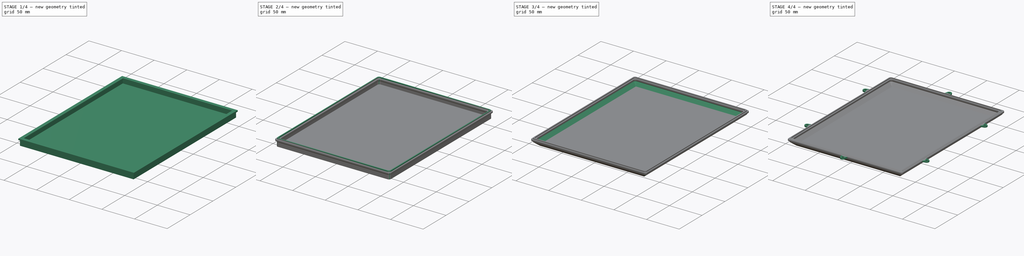
[diagram: build sequence overview — one tinted view per stage of 4, left to right]
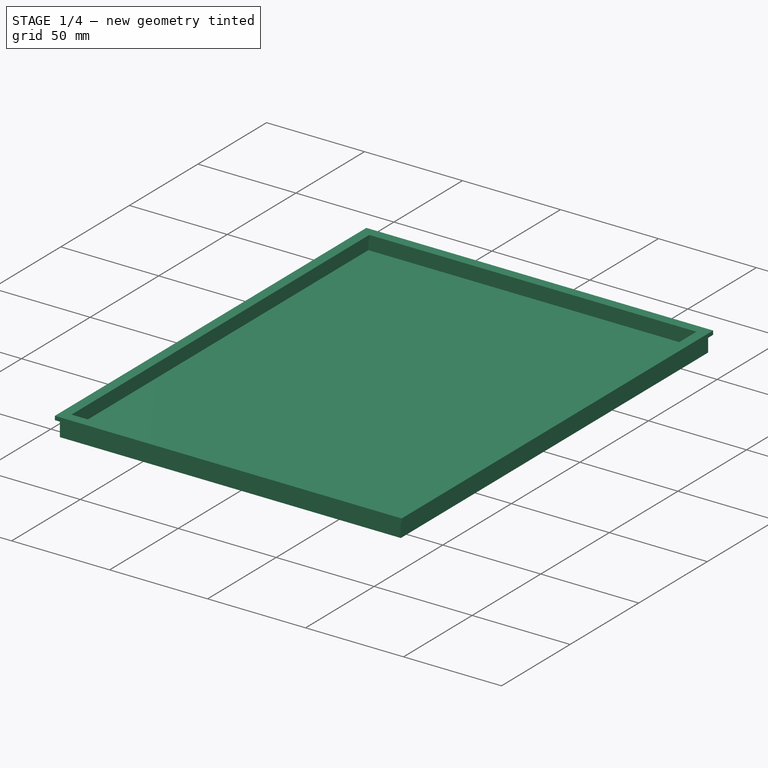
[diagram: stage 1 of 4 — iso view after this stage's code; geometry added in this stage tinted green]
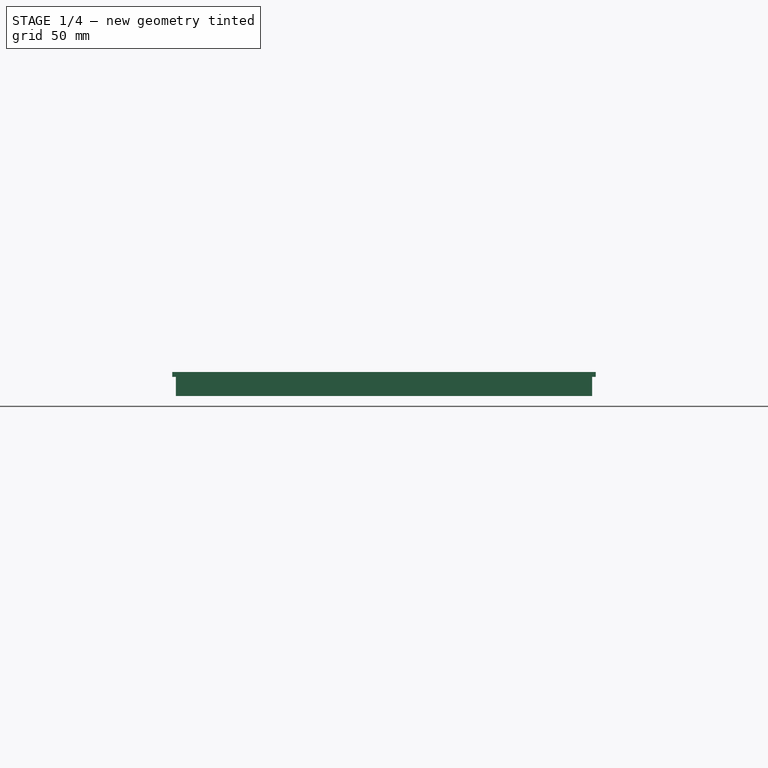
[diagram: stage 1 of 4 — front view after this stage's code; geometry added in this stage tinted green]
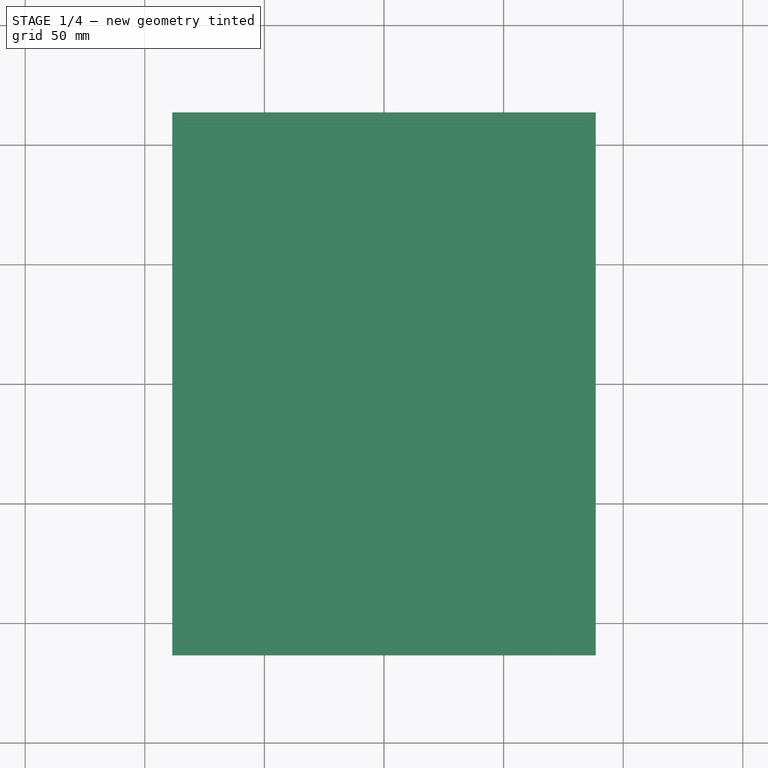
[diagram: stage 1 of 4 — top view after this stage's code; geometry added in this stage tinted green]
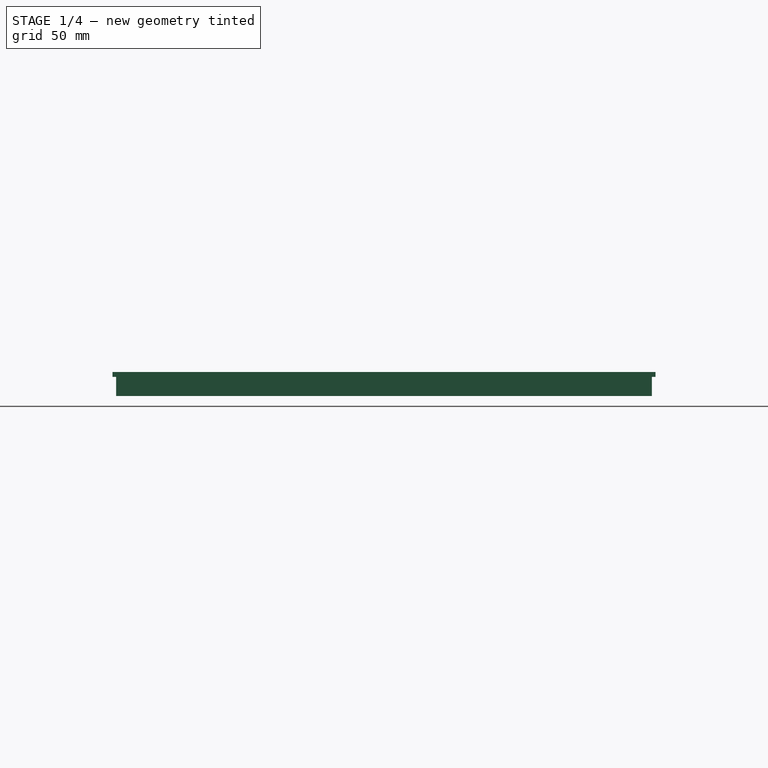
[diagram: stage 1 of 4 — right view after this stage's code; geometry added in this stage tinted green]
FCSTD DOCUMENT  (FreeCAD 0.20R29603 (Git))
Label: Tampa
License: All rights reserved
LicenseURL: http://en.wikipedia.org/wiki/All_rights_reserved
objects: Sketcher::SketchObject×5, PartDesign::Pad×5, PartDesign::Chamfer×5, PartDesign::Fillet×1, PartDesign::Body×1
note: 28 computed .brp shape members not serialized (recipe doc carries the construction recipe); baked Part::Feature solids carry a one-line shape summary decoded from their .brp

FEATURE [Sketcher::SketchObject] Sketch
  FullyConstrained = true
  MapMode = 5
  Support = -> [XY_Plane]
  sketch-geometry (5):
    g0: LineSegment StartX=87 StartY=-112 StartZ=0 EndX=87 EndY=112 EndZ=0
    g1: LineSegment StartX=87 StartY=112 StartZ=0 EndX=-87 EndY=112 EndZ=0
    g2: LineSegment StartX=-87 StartY=112 StartZ=0 EndX=-87 EndY=-112 EndZ=0
    g3: LineSegment StartX=-87 StartY=-112 StartZ=0 EndX=87 EndY=-112 EndZ=0
    g4: GeomPoint X=0 Y=0 Z=0
  constraints (12):
    c: Coincident(g0,g1)
    c: Coincident(g1,g2)
    c: Coincident(g2,g3)
    c: Coincident(g3,g0)
    c: Horizontal(g1)
    c: Horizontal(g3)
    c: Vertical(g0)
    c: Vertical(g2)
    c: Symmetric(g1,g0,g4)
    c: Coincident(g4,g-1)
    c: DistanceX(g1,g1) = 174
    c: DistanceY(g2,g2) = 224
FEATURE [PartDesign::Pad] Pad
  Direction = (0,0,1)
  Length = 2
  Length2 = 10
  Profile = -> Sketch
  ReferenceAxis = -> Sketch [N_Axis]
  Type = 0
FEATURE [Sketcher::SketchObject] Sketch001
  ExternalGeometry = -> [Pad]
  FullyConstrained = true
  MapMode = 5
  Placement = pos=(0,0,2) rot=(0,0,1;0rad)
  Support = -> [Pad]
  sketch-geometry (9):
    g0: LineSegment StartX=-87 StartY=-112 StartZ=0 EndX=87 EndY=-112 EndZ=0
    g1: LineSegment StartX=87 StartY=-112 StartZ=0 EndX=87 EndY=112 EndZ=0
    g2: LineSegment StartX=87 StartY=112 StartZ=0 EndX=-87 EndY=112 EndZ=0
    g3: LineSegment StartX=-87 StartY=112 StartZ=0 EndX=-87 EndY=-112 EndZ=0
    g4: LineSegment StartX=85 StartY=-110 StartZ=0 EndX=85 EndY=110 EndZ=0
    g5: LineSegment StartX=85 StartY=110 StartZ=0 EndX=-85 EndY=110 EndZ=0
    g6: LineSegment StartX=-85 StartY=110 StartZ=0 EndX=-85 EndY=-110 EndZ=0
    g7: LineSegment StartX=-85 StartY=-110 StartZ=0 EndX=85 EndY=-110 EndZ=0
    g8: GeomPoint X=0 Y=0 Z=0
  constraints (22):
    c: Coincident(g0,g1)
    c: Coincident(g1,g2)
    c: Coincident(g2,g3)
    c: Coincident(g3,g0)
    c: Horizontal(g0)
    c: Horizontal(g2)
    c: Vertical(g1)
    c: Vertical(g3)
    c: Coincident(g0,g-4)
    c: Coincident(g1,g-3)
    c: Coincident(g4,g5)
    c: Coincident(g5,g6)
    c: Coincident(g6,g7)
    c: Coincident(g7,g4)
    c: Horizontal(g5)
    c: Horizontal(g7)
    c: Vertical(g4)
    c: Vertical(g6)
    c: Symmetric(g5,g4,g8)
    c: Coincident(g8,g-1)
    c: DistanceX(g2,g5) = 2
    c: DistanceY(g5,g2) = 2
FEATURE [PartDesign::Pad] Pad001
  BaseFeature = -> Pad
  Direction = (0,0,1)
  Length = 8
  Length2 = 10
  Profile = -> Sketch001
  ReferenceAxis = -> Sketch001 [N_Axis]
  Type = 0
FEATURE [Sketcher::SketchObject] Sketch002
  ExternalGeometry = -> [Pad001]
  FullyConstrained = true
  MapMode = 5
  Placement = pos=(0,0,10) rot=(0,0,1;0rad)
  Support = -> [Pad001]
  sketch-geometry (16):
    g0: LineSegment StartX=-85 StartY=-110 StartZ=0 EndX=85 EndY=-110 EndZ=0
    g1: LineSegment StartX=85 StartY=-110 StartZ=0 EndX=85 EndY=110 EndZ=0
    g2: LineSegment StartX=85 StartY=110 StartZ=0 EndX=-85 EndY=110 EndZ=0
    g3: LineSegment StartX=-85 StartY=110 StartZ=0 EndX=-85 EndY=-110 EndZ=0
    g4: LineSegment StartX=87 StartY=112 StartZ=0 EndX=-87 EndY=112 EndZ=0
    g5: LineSegment StartX=-87 StartY=112 StartZ=0 EndX=-87 EndY=-112 EndZ=0
    g6: LineSegment StartX=-87 StartY=-112 StartZ=0 EndX=87 EndY=-112 EndZ=0
    g7: LineSegment StartX=87 StartY=-112 StartZ=0 EndX=87 EndY=112 EndZ=0
    g8: LineSegment StartX=-88.5 StartY=-113.5 StartZ=0 EndX=88.5 EndY=-113.5 EndZ=0
    g9: LineSegment StartX=88.5 StartY=-113.5 StartZ=0 EndX=88.5 EndY=113.5 EndZ=0
    g10: LineSegment StartX=88.5 StartY=113.5 StartZ=0 EndX=-88.5 EndY=113.5 EndZ=0
    g11: LineSegment StartX=-88.5 StartY=113.5 StartZ=0 EndX=-88.5 EndY=-113.5 EndZ=0
    g12: LineSegment StartX=83.5 StartY=108.5 StartZ=0 EndX=-83.5 EndY=108.5 EndZ=0
    g13: LineSegment StartX=-83.5 StartY=108.5 StartZ=0 EndX=-83.5 EndY=-108.5 EndZ=0
    g14: LineSegment StartX=-83.5 StartY=-108.5 StartZ=0 EndX=83.5 EndY=-108.5 EndZ=0
    g15: LineSegment StartX=83.5 StartY=-108.5 StartZ=0 EndX=83.5 EndY=108.5 EndZ=0
  constraints (44):
    c: Coincident(g0,g1)
    c: Coincident(g1,g2)
    c: Coincident(g2,g3)
    c: Coincident(g3,g0)
    c: Horizontal(g0)
    c: Horizontal(g2)
    c: Vertical(g1)
    c: Vertical(g3)
    c: Coincident(g0,g-9)
    c: Coincident(g1,g-8)
    c: Coincident(g4,g5)
    c: Coincident(g5,g6)
    c: Coincident(g6,g7)
    c: Coincident(g7,g4)
    c: Horizontal(g4)
    c: Horizontal(g6)
    c: Vertical(g5)
    c: Vertical(g7)
    c: Coincident(g4,g-7)
    c: Coincident(g5,g-10)
    c: Coincident(g8,g9)
    c: Coincident(g9,g10)
    c: Coincident(g10,g11)
    c: Coincident(g11,g8)
    c: Horizontal(g8)
    c: Horizontal(g10)
    c: Vertical(g9)
    c: Vertical(g11)
    c: Coincident(g12,g13)
    c: Coincident(g13,g14)
    c: Coincident(g14,g15)
    c: Coincident(g15,g12)
    c: Horizontal(g12)
    c: Horizontal(g14)
    c: Vertical(g13)
    c: Vertical(g15)
    c: DistanceX(g8,g5) = 1.5
    c: DistanceY(g8,g5) = 1.5
    c: DistanceX(g0,g13) = 1.5
    c: DistanceY(g0,g13) = 1.5
    c: DistanceX(g12,g1) = 1.5
    c: DistanceY(g12,g1) = 1.5
    c: DistanceX(g4,g9) = 1.5
    c: DistanceY(g4,g9) = 1.5
FEATURE [PartDesign::Pad] Pad002
  BaseFeature = -> Pad001
  Direction = (0,0,1)
  Length = 2
  Length2 = 2
  Profile = -> Sketch002
  ReferenceAxis = -> Sketch002 [N_Axis]
  Refine = true
  Reversed = true
  Type = 0
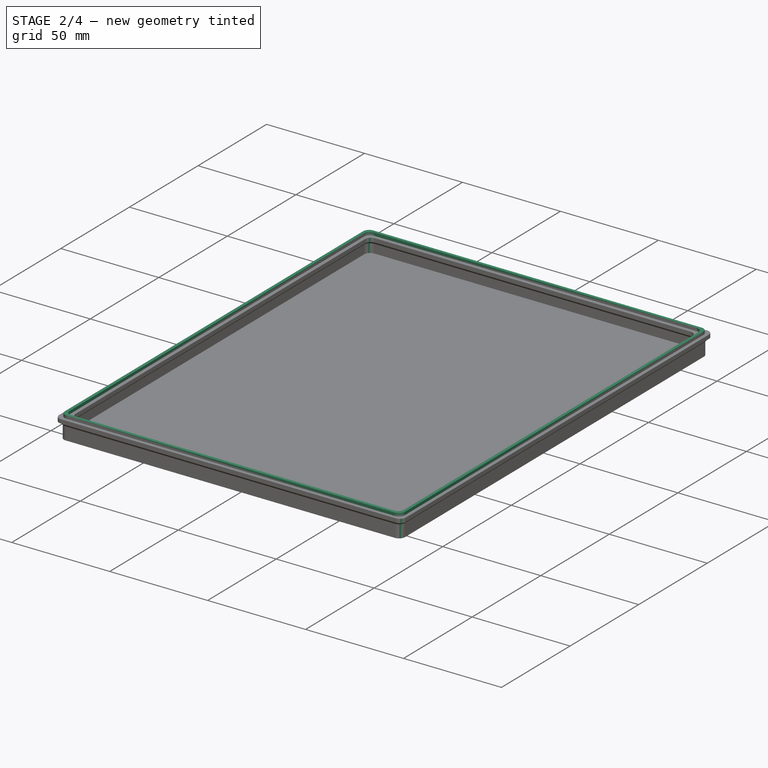
[diagram: stage 2 of 4 — iso view after this stage's code; geometry added in this stage tinted green]
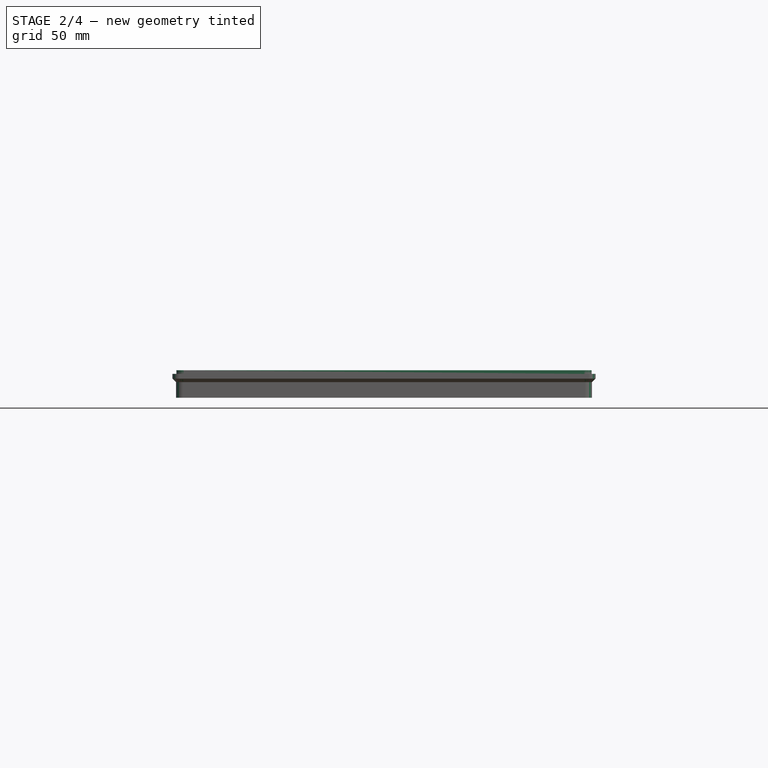
[diagram: stage 2 of 4 — front view after this stage's code; geometry added in this stage tinted green]
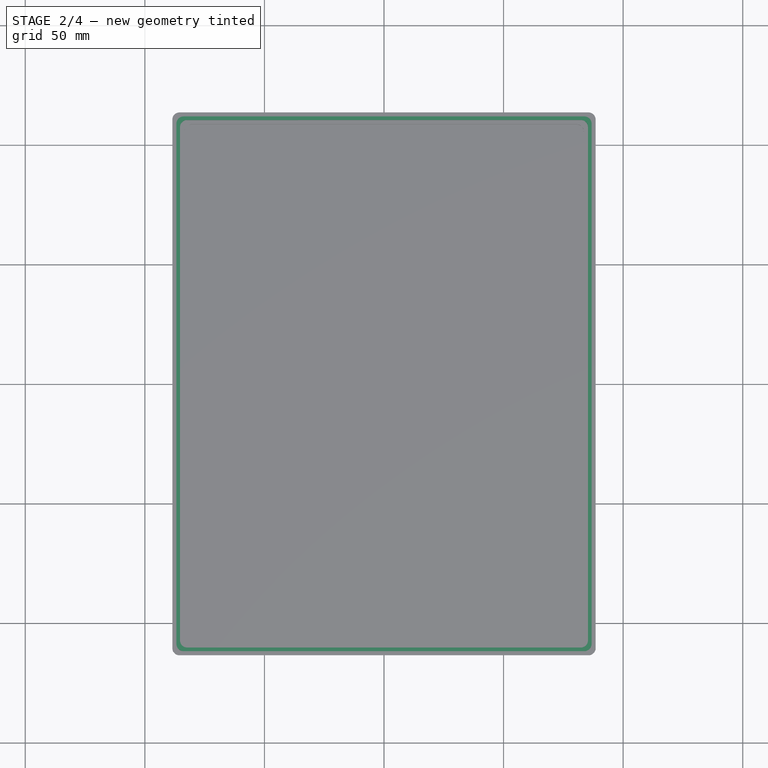
[diagram: stage 2 of 4 — top view after this stage's code; geometry added in this stage tinted green]
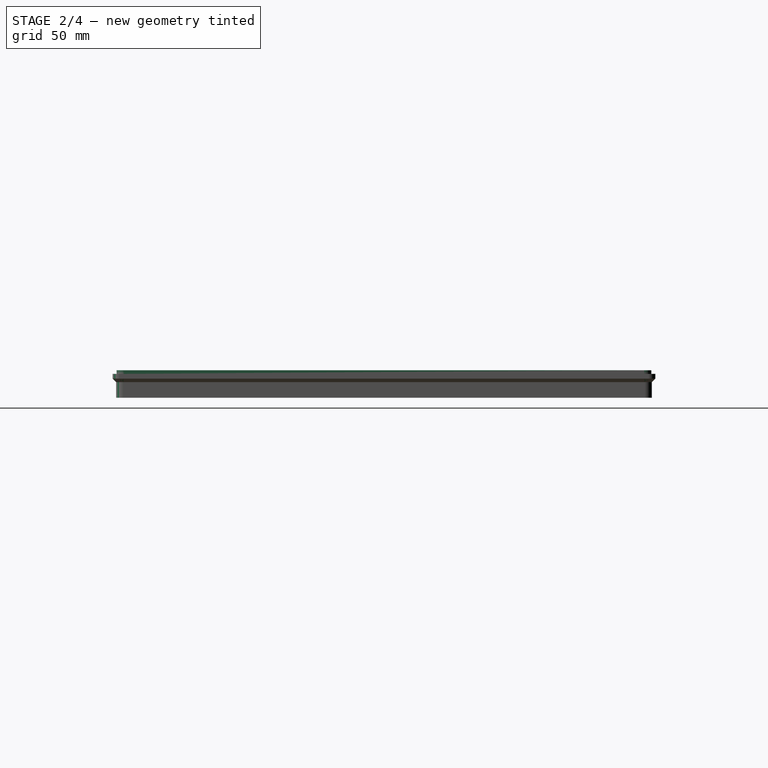
[diagram: stage 2 of 4 — right view after this stage's code; geometry added in this stage tinted green]
FEATURE [Sketcher::SketchObject] Sketch003
  ExternalGeometry = -> [Pad002]
  FullyConstrained = true
  MapMode = 5
  Placement = pos=(0,0,10) rot=(0,0,1;0rad)
  Support = -> [Pad002]
  sketch-geometry (10):
    g0: LineSegment StartX=86.8 StartY=-111.8 StartZ=0 EndX=86.8 EndY=111.8 EndZ=0
    g1: LineSegment StartX=86.8 StartY=111.8 StartZ=0 EndX=-86.8 EndY=111.8 EndZ=0
    g2: LineSegment StartX=-86.8 StartY=111.8 StartZ=0 EndX=-86.8 EndY=-111.8 EndZ=0
    g3: LineSegment StartX=-86.8 StartY=-111.8 StartZ=0 EndX=86.8 EndY=-111.8 EndZ=0
    g4: GeomPoint X=0 Y=0 Z=0
    g5: LineSegment StartX=85.3 StartY=-110.3 StartZ=0 EndX=85.3 EndY=110.3 EndZ=0
    g6: LineSegment StartX=85.3 StartY=110.3 StartZ=0 EndX=-85.3 EndY=110.3 EndZ=0
    g7: LineSegment StartX=-85.3 StartY=110.3 StartZ=0 EndX=-85.3 EndY=-110.3 EndZ=0
    g8: LineSegment StartX=-85.3 StartY=-110.3 StartZ=0 EndX=85.3 EndY=-110.3 EndZ=0
    g9: GeomPoint X=0 Y=0 Z=0
  constraints (24):
    c: Coincident(g0,g1)
    c: Coincident(g1,g2)
    c: Coincident(g2,g3)
    c: Coincident(g3,g0)
    c: Horizontal(g1)
    c: Horizontal(g3)
    c: Vertical(g0)
    c: Vertical(g2)
    c: Symmetric(g1,g0,g4)
    c: Coincident(g4,g-1)
    c: Coincident(g5,g6)
    c: Coincident(g6,g7)
    c: Coincident(g7,g8)
    c: Coincident(g8,g5)
    c: Horizontal(g6)
    c: Horizontal(g8)
    c: Vertical(g5)
    c: Vertical(g7)
    c: Symmetric(g6,g5,g9)
    c: Coincident(g9,g4)
    c: DistanceX(g-3,g1) = 1.7
    c: DistanceY(g1,g-3) = 1.7
    c: DistanceX(g1,g6) = 1.5
    c: DistanceY(g6,g1) = 1.5
FEATURE [PartDesign::Pad] Pad003
  BaseFeature = -> Pad002
  Direction = (0,0,1)
  Length = 1.5
  Length2 = 10
  Profile = -> Sketch003
  ReferenceAxis = -> Sketch003 [N_Axis]
  Type = 0
FEATURE [PartDesign::Fillet] Fillet
  Base = -> Pad003 [Edge54,Edge44,Edge71,Edge32,Edge22,Edge8,Edge53,Edge69,Edge5,Edge42,Edge30,Edge20,Edge56,Edge41,Edge29,Edge18,Edge7,Edge66,Edge17,Edge10,Edge67,Edge34,Edge46,Edge58]
  BaseFeature = -> Pad003
  Radius = 3
  SupportTransform = false
  UseAllEdges = false
FEATURE [PartDesign::Chamfer] Chamfer
  Angle = 45
  Base = -> Fillet [Edge21,Edge122]
  BaseFeature = -> Fillet
  ChamferType = 0
  FlipDirection = false
  Size = 1.49
  Size2 = 1
  SupportTransform = false
  UseAllEdges = false
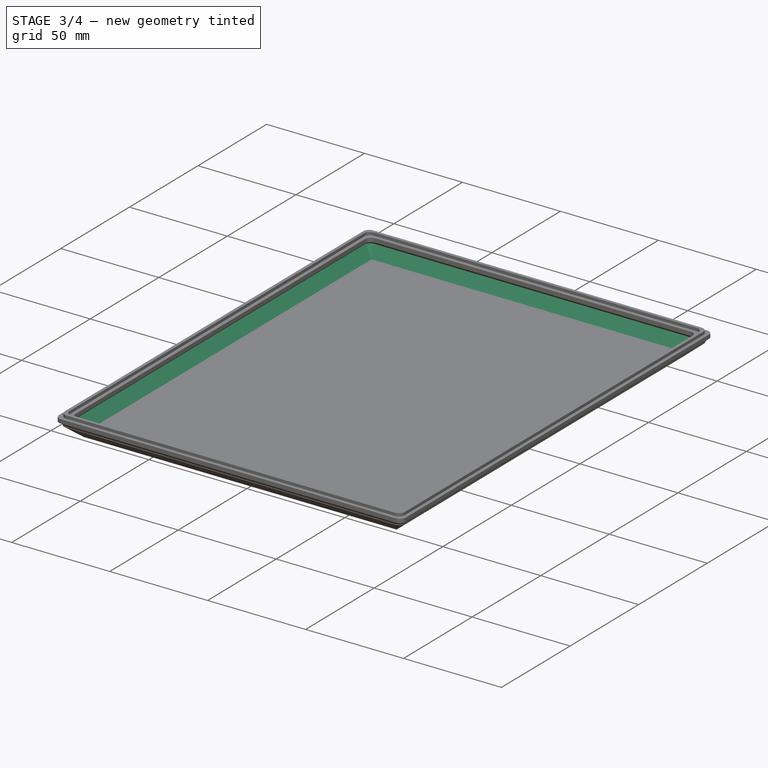
[diagram: stage 3 of 4 — iso view after this stage's code; geometry added in this stage tinted green]
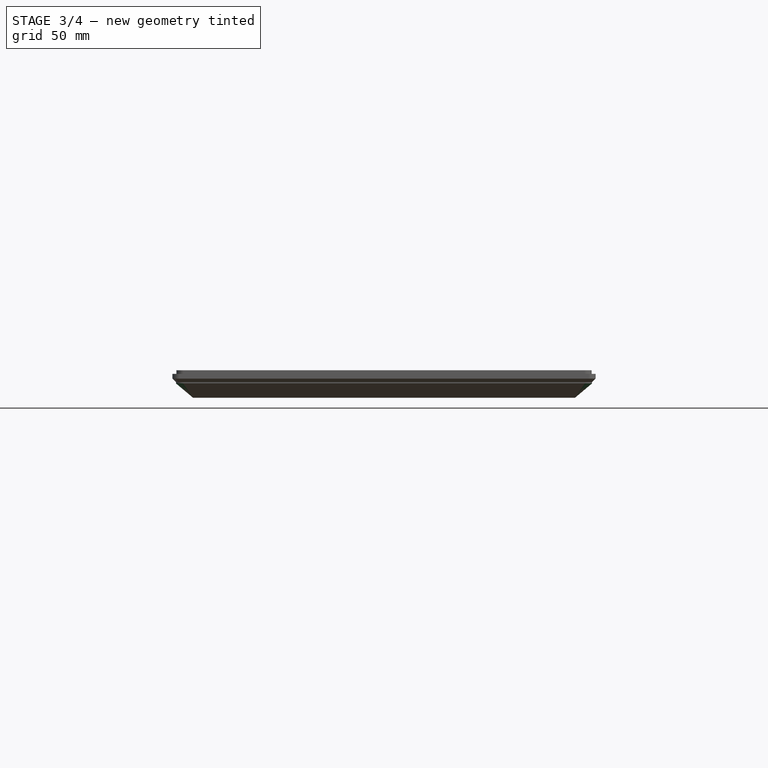
[diagram: stage 3 of 4 — front view after this stage's code; geometry added in this stage tinted green]
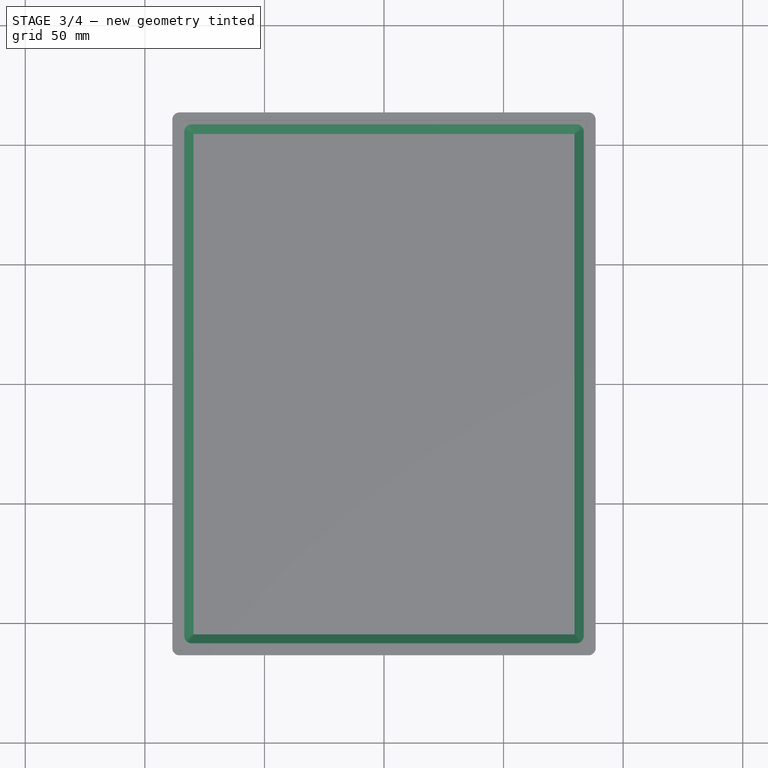
[diagram: stage 3 of 4 — top view after this stage's code; geometry added in this stage tinted green]
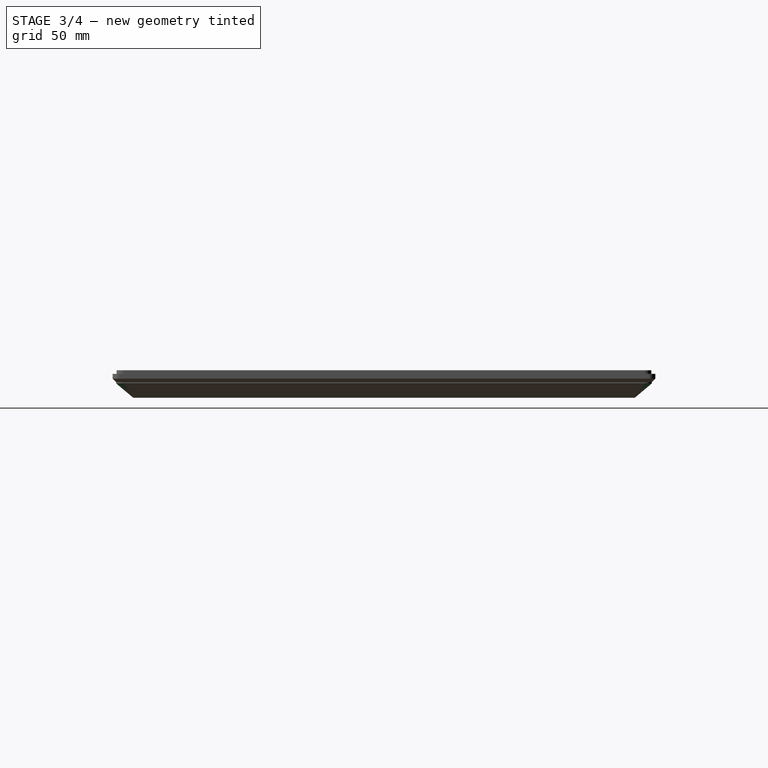
[diagram: stage 3 of 4 — right view after this stage's code; geometry added in this stage tinted green]
FEATURE [PartDesign::Chamfer] Chamfer001
  Angle = 50
  Base = -> Chamfer [Edge14]
  BaseFeature = -> Chamfer
  ChamferType = 2
  FlipDirection = true
  Size = 6
  Size2 = 1
  SupportTransform = false
  UseAllEdges = false
FEATURE [PartDesign::Chamfer] Chamfer002
  Angle = 50
  Base = -> Chamfer001 [Edge178]
  BaseFeature = -> Chamfer001
  ChamferType = 2
  FlipDirection = false
  Size = 4.5
  Size2 = 1
  SupportTransform = false
  UseAllEdges = false
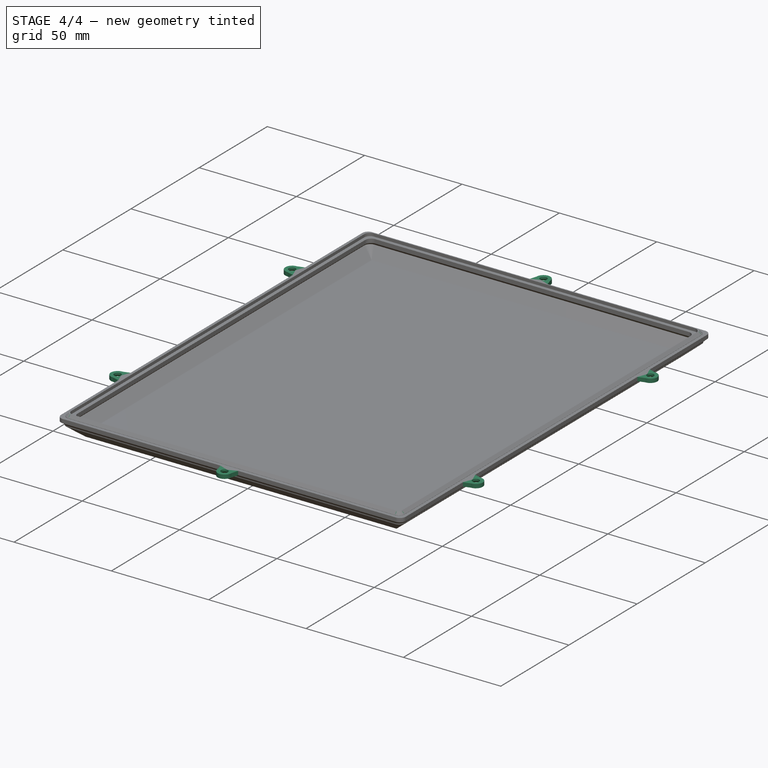
[diagram: stage 4 of 4 — iso view after this stage's code; geometry added in this stage tinted green]
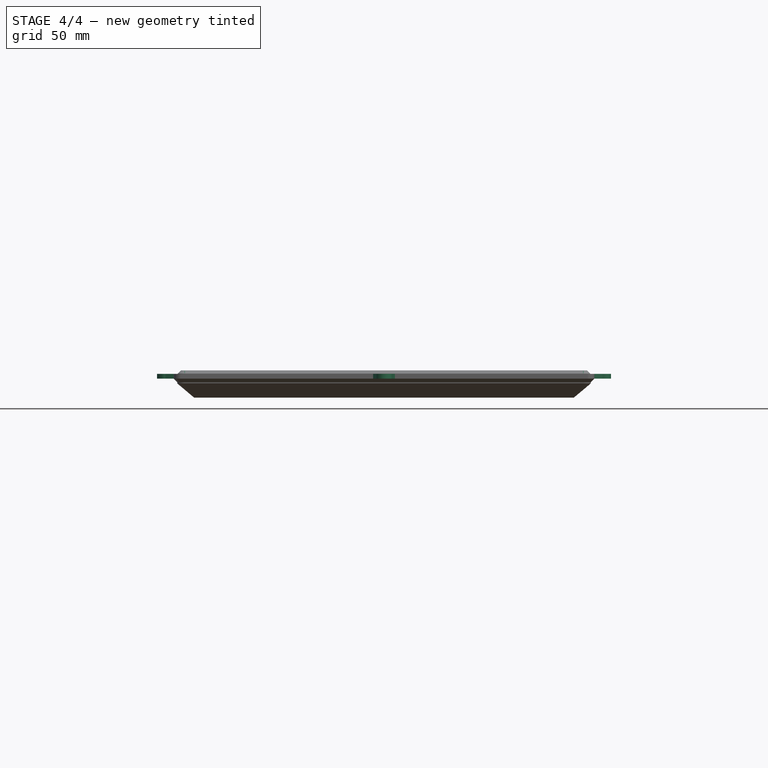
[diagram: stage 4 of 4 — front view after this stage's code; geometry added in this stage tinted green]
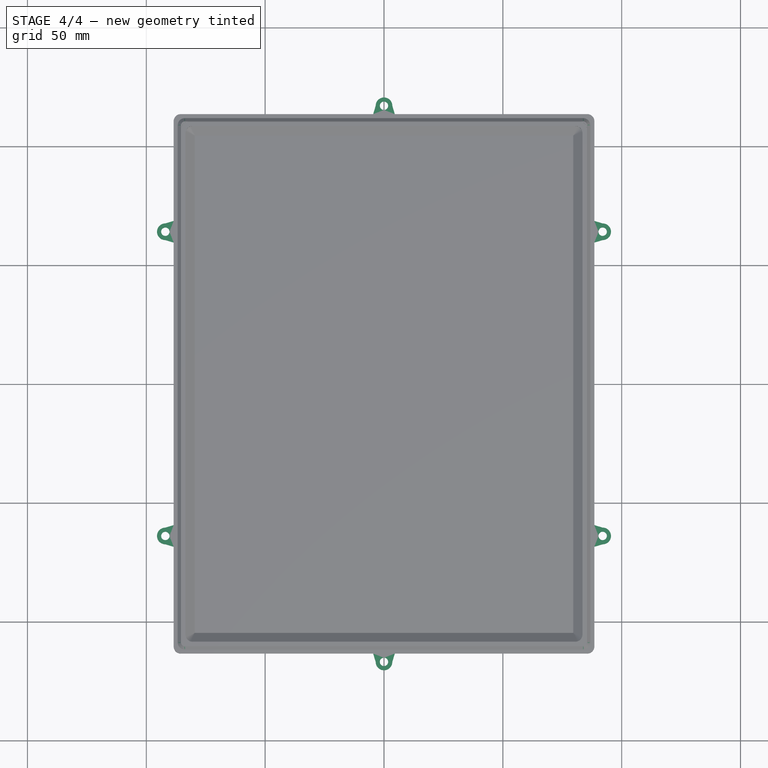
[diagram: stage 4 of 4 — top view after this stage's code; geometry added in this stage tinted green]
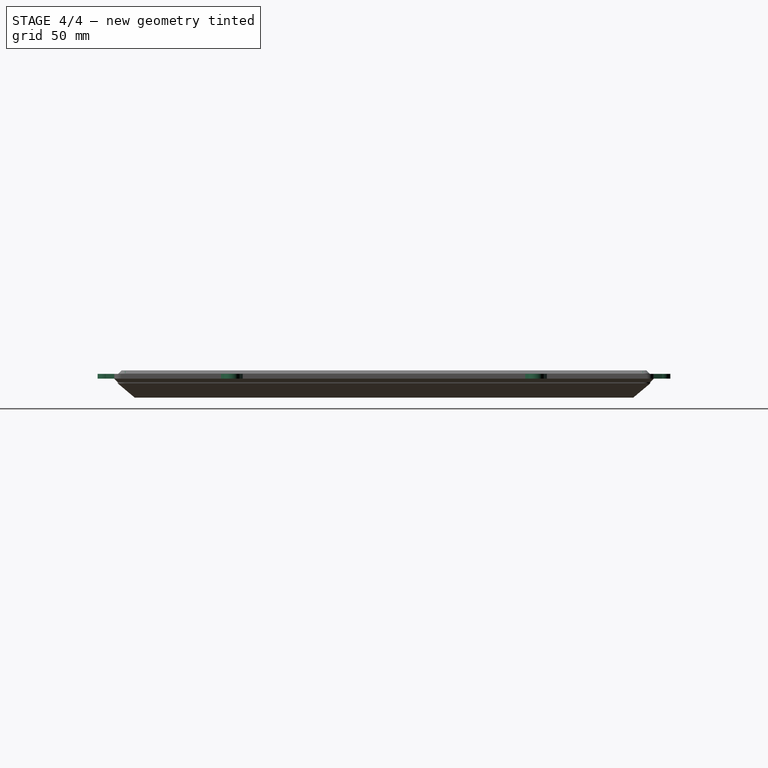
[diagram: stage 4 of 4 — right view after this stage's code; geometry added in this stage tinted green]
FEATURE [Sketcher::SketchObject] Sketch004
  ExternalGeometry = -> [Chamfer002]
  FullyConstrained = true
  MapMode = 5
  Placement = pos=(0,0,10) rot=(0,0,1;0rad)
  Support = -> [Chamfer002]
  sketch-geometry (37):
    g0: LineSegment StartX=-92 StartY=-64 StartZ=0 EndX=-92 EndY=64 EndZ=0
    g1: LineSegment StartX=-92 StartY=64 StartZ=0 EndX=92 EndY=64 EndZ=0
    g2: LineSegment StartX=92 StartY=64 StartZ=0 EndX=92 EndY=-64 EndZ=0
    g3: LineSegment StartX=92 StartY=-64 StartZ=0 EndX=-92 EndY=-64 EndZ=0
    g4: GeomPoint X=3e-16 Y=6e-16 Z=0
    g5: ArcOfCircle CenterX=-92 CenterY=64 CenterZ=0 NormalX=0 NormalY=0 NormalZ=1 AngleXU=0 Radius=3.5 StartAngle=1.5708 EndAngle=4.71239
    g6: ArcOfCircle CenterX=-92 CenterY=-64 CenterZ=0 NormalX=0 NormalY=0 NormalZ=1 AngleXU=0 Radius=3.5 StartAngle=1.5708 EndAngle=4.71239
    g7: ArcOfCircle CenterX=92 CenterY=-64 CenterZ=0 NormalX=0 NormalY=0 NormalZ=1 AngleXU=0 Radius=3.5 StartAngle=4.71239 EndAngle=7.85398
    g8: ArcOfCircle CenterX=92 CenterY=64 CenterZ=0 NormalX=0 NormalY=0 NormalZ=1 AngleXU=0 Radius=3.5 StartAngle=4.71239 EndAngle=7.85398
    g9: ArcOfCircle CenterX=-1e-16 CenterY=-117 CenterZ=0 NormalX=0 NormalY=0 NormalZ=1 AngleXU=0 Radius=3.5 StartAngle=3.14159 EndAngle=6.28319
    g10: ArcOfCircle CenterX=0 CenterY=117 CenterZ=0 NormalX=0 NormalY=0 NormalZ=1 AngleXU=0 Radius=3.5 StartAngle=2.8e-15 EndAngle=3.14159
    g11: LineSegment StartX=-3.5 StartY=-117 StartZ=0 EndX=-4.55 EndY=-113.5 EndZ=0
    g12: LineSegment StartX=-4.55 StartY=-113.5 StartZ=0 EndX=4.55 EndY=-113.5 EndZ=0
    g13: LineSegment StartX=4.55 StartY=-113.5 StartZ=0 EndX=3.5 EndY=-117 EndZ=0
    g14: LineSegment StartX=-92 StartY=-67.5 StartZ=0 EndX=-88.5 EndY=-68.55 EndZ=0
    g15: LineSegment StartX=-88.5 StartY=-68.55 StartZ=0 EndX=-88.5 EndY=-59.45 EndZ=0
    g16: LineSegment StartX=-88.5 StartY=-59.45 StartZ=0 EndX=-92 EndY=-60.5 EndZ=0
    g17: LineSegment StartX=-92 StartY=67.5 StartZ=0 EndX=-88.5 EndY=68.55 EndZ=0
    g18: LineSegment StartX=-88.5 StartY=68.55 StartZ=0 EndX=-88.5 EndY=59.45 EndZ=0
    g19: LineSegment StartX=-88.5 StartY=59.45 StartZ=0 EndX=-92 EndY=60.5 EndZ=0
    g20: LineSegment StartX=92 StartY=60.5 StartZ=0 EndX=88.5 EndY=59.45 EndZ=0
    g21: LineSegment StartX=88.5 StartY=59.45 StartZ=0 EndX=88.5 EndY=68.55 EndZ=0
    g22: LineSegment StartX=88.5 StartY=68.55 StartZ=0 EndX=92 EndY=67.5 EndZ=0
    g23: LineSegment StartX=3.5 StartY=117 StartZ=0 EndX=4.55 EndY=113.5 EndZ=0
    g24: LineSegment StartX=4.55 StartY=113.5 StartZ=0 EndX=-4.55 EndY=113.5 EndZ=0
    g25: LineSegment StartX=-4.55 StartY=113.5 StartZ=0 EndX=-3.5 EndY=117 EndZ=0
    g26: LineSegment StartX=92 StartY=-67.5 StartZ=0 EndX=88.5 EndY=-68.55 EndZ=0
    g27: LineSegment StartX=88.5 StartY=-68.55 StartZ=0 EndX=88.5 EndY=-59.45 EndZ=0
    g28: LineSegment StartX=88.5 StartY=-59.45 StartZ=0 EndX=92 EndY=-60.5 EndZ=0
    g29: LineSegment StartX=-3.5 StartY=117 StartZ=0 EndX=3.5 EndY=117 EndZ=0
    g30: LineSegment StartX=-3.5 StartY=-117 StartZ=0 EndX=3.5 EndY=-117 EndZ=0
    g31: Circle CenterX=-92 CenterY=64 CenterZ=0 NormalX=0 NormalY=0 NormalZ=1 AngleXU=0 Radius=1.75
    g32: Circle CenterX=0 CenterY=117 CenterZ=0 NormalX=0 NormalY=0 NormalZ=1 AngleXU=0 Radius=1.75
    g33: Circle CenterX=92 CenterY=64 CenterZ=0 NormalX=0 NormalY=0 NormalZ=1 AngleXU=0 Radius=1.75
    g34: Circle CenterX=92 CenterY=-64 CenterZ=0 NormalX=0 NormalY=0 NormalZ=1 AngleXU=0 Radius=1.75
    g35: Circle CenterX=-1e-16 CenterY=-117 CenterZ=0 NormalX=0 NormalY=0 NormalZ=1 AngleXU=0 Radius=1.75
    g36: Circle CenterX=-92 CenterY=-64 CenterZ=0 NormalX=0 NormalY=0 NormalZ=1 AngleXU=0 Radius=1.75
  constraints (101):
    c: Coincident(g0,g1)
    c: Coincident(g1,g2)
    c: Coincident(g2,g3)
    c: Coincident(g3,g0)
    c: Horizontal(g1)
    c: Horizontal(g3)
    c: Vertical(g0)
    c: Vertical(g2)
    c: Symmetric(g1,g0,g4)
    c: Coincident(g4,g-1)
    c: DistanceX(g1,g1) = 184
    c: DistanceY(g0,g0) = 128
    c: Coincident(g5,g0)
    c: PointOnObject(g5,g0)
    c: Coincident(g6,g0)
    c: PointOnObject(g6,g0)
    c: Coincident(g7,g2)
    c: PointOnObject(g7,g2)
    c: Coincident(g8,g1)
    c: PointOnObject(g8,g2)
    c: PointOnObject(g9,g-2)
    c: DistanceY(g9,g10) = 234
    c: Symmetric(g9,g10,g4)
    c: PointOnObject(g11,g-6)
    c: Coincident(g11,g12)
    c: PointOnObject(g12,g-6)
    c: Coincident(g12,g13)
    c: Coincident(g13,g9)
    c: PointOnObject(g14,g-3)
    c: Coincident(g14,g15)
    c: PointOnObject(g15,g-3)
    c: Coincident(g15,g16)
    c: Coincident(g16,g6)
    c: PointOnObject(g17,g-3)
    c: Coincident(g17,g18)
    c: PointOnObject(g18,g-3)
    c: Coincident(g18,g19)
    c: Coincident(g19,g5)
    c: PointOnObject(g20,g-5)
    c: Coincident(g20,g21)
    c: PointOnObject(g21,g-5)
    c: Coincident(g21,g22)
    c: Coincident(g22,g8)
    c: PointOnObject(g23,g-4)
    c: Coincident(g23,g24)
    c: PointOnObject(g24,g-4)
    c: Coincident(g24,g25)
    c: PointOnObject(g26,g-5)
    c: Coincident(g26,g27)
    c: PointOnObject(g27,g-5)
    c: Coincident(g27,g28)
    c: Coincident(g28,g7)
    c: Coincident(g11,g9)
    c: Coincident(g7,g26)
    c: Coincident(g8,g20)
    c: Coincident(g10,g23)
    c: Coincident(g10,g25)
    c: Coincident(g17,g5)
    c: Coincident(g14,g6)
    c: PointOnObject(g6,g0)
    c: PointOnObject(g5,g0)
    c: Coincident(g29,g10)
    c: Coincident(g29,g10)
    c: Horizontal(g29)
    c: PointOnObject(g10,g29)
    c: PointOnObject(g8,g2)
    c: PointOnObject(g7,g2)
    c: Coincident(g30,g9)
    c: Coincident(g30,g9)
    c: Horizontal(g30)
    c: PointOnObject(g9,g30)
    c: Equal(g9,g7)
    c: Equal(g9,g8)
    c: Equal(g9,g10)
    c: Equal(g9,g5)
    c: Equal(g9,g6)
    c: Diameter(g9) = 7
    c: Equal(g17,g19)
    c: Equal(g25,g23)
    c: Equal(g20,g22)
    c: Equal(g26,g28)
    c: Equal(g13,g11)
    c: Equal(g12,g27)
    c: Equal(g27,g21)
    c: Equal(g21,g24)
    c: Equal(g24,g18)
    c: Equal(g18,g15)
    c: Equal(g16,g14)
    c: DistanceY(g18,g18) = 9.1
    c: Coincident(g31,g5)
    c: Coincident(g32,g10)
    c: Coincident(g33,g8)
    c: Coincident(g34,g7)
    c: Coincident(g35,g9)
    c: Coincident(g36,g6)
    c: Equal(g36,g35)
    c: Equal(g36,g34)
    c: Equal(g36,g33)
    c: Equal(g36,g32)
    c: Equal(g36,g31)
    c: Diameter(g36) = 3.5
FEATURE [PartDesign::Pad] Pad004
  BaseFeature = -> Chamfer002
  Direction = (0,0,1)
  Length = 2
  Length2 = 10
  Profile = -> Sketch004
  ReferenceAxis = -> Sketch004 [N_Axis]
  Reversed = true
  Type = 0
FEATURE [PartDesign::Chamfer] Chamfer003
  Angle = 45
  Base = -> Pad004 [Edge234,Edge262,Edge255,Edge248,Edge227,Edge241]
  BaseFeature = -> Pad004
  ChamferType = 0
  FlipDirection = false
  Size = 1
  Size2 = 1
  SupportTransform = false
  UseAllEdges = false
FEATURE [PartDesign::Chamfer] Chamfer004
  Angle = 45
  Base = -> Chamfer003 [Edge116]
  BaseFeature = -> Chamfer003
  ChamferType = 0
  FlipDirection = false
  Size = 1.4
  Size2 = 1
  SupportTransform = false
  UseAllEdges = false
FEATURE [PartDesign::Body] Body
  Group = -> [Sketch,Pad,Sketch001,Pad001,Sketch002,Pad002,Sketch003,Pad003,Fillet,Chamfer,Chamfer001,Chamfer002,Sketch004,Pad004,Chamfer003,Chamfer004]
  Origin = -> Origin
  Tip = -> Chamfer004
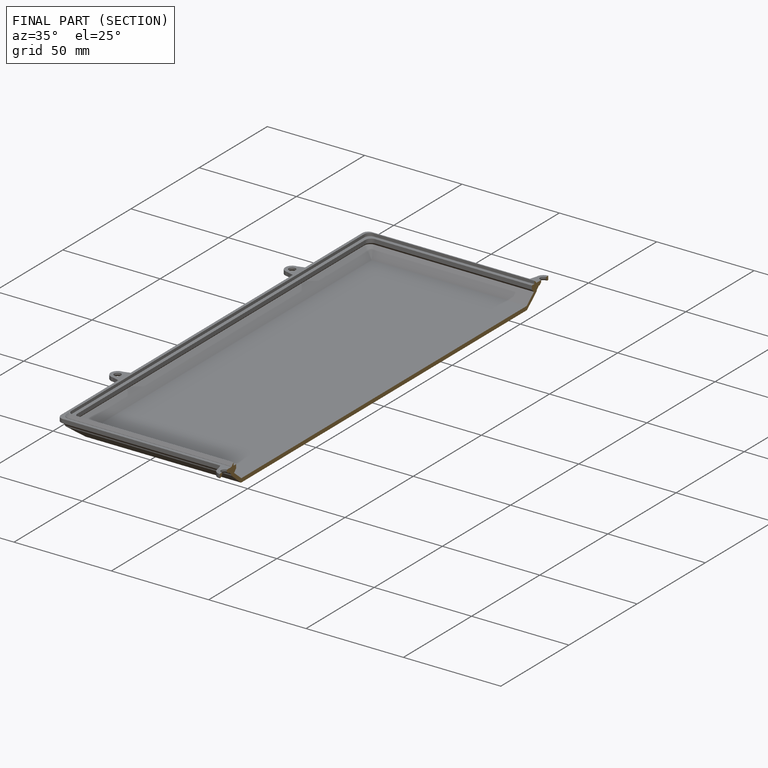
[diagram: finished part — half-section view (interior)]
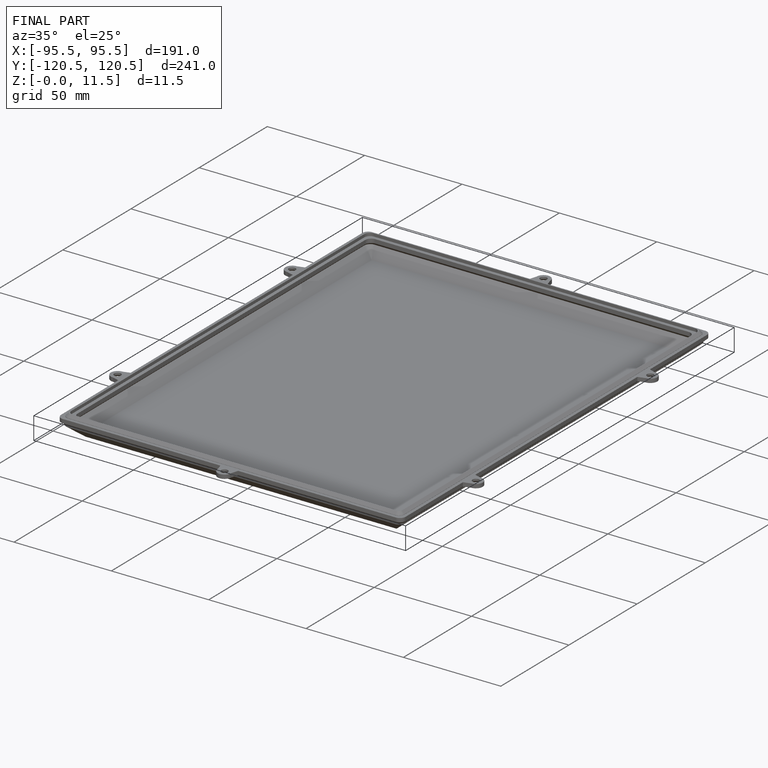
[diagram: finished part — iso view with bounding-box wireframe]
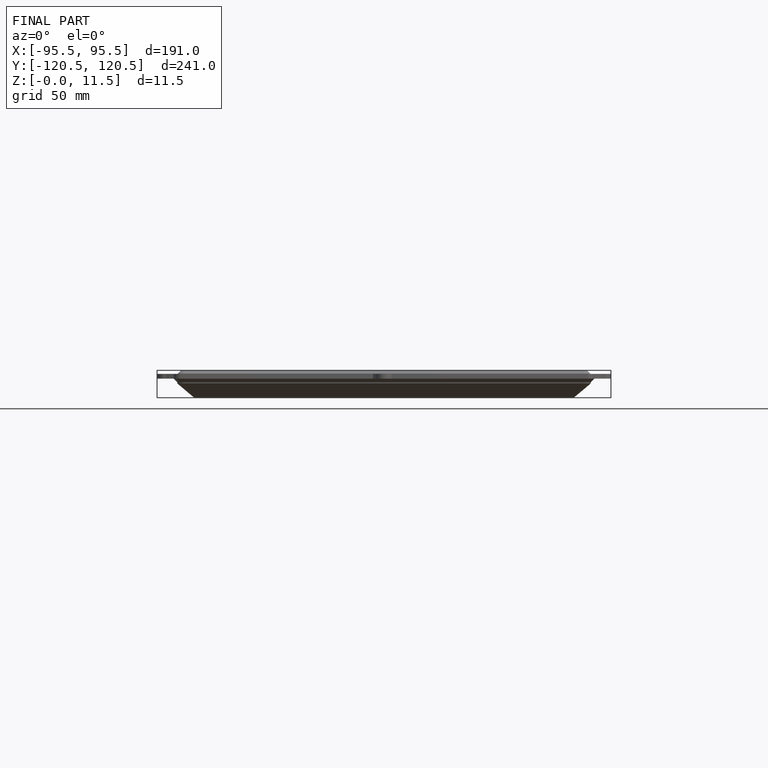
[diagram: finished part — front view with bounding-box wireframe]
